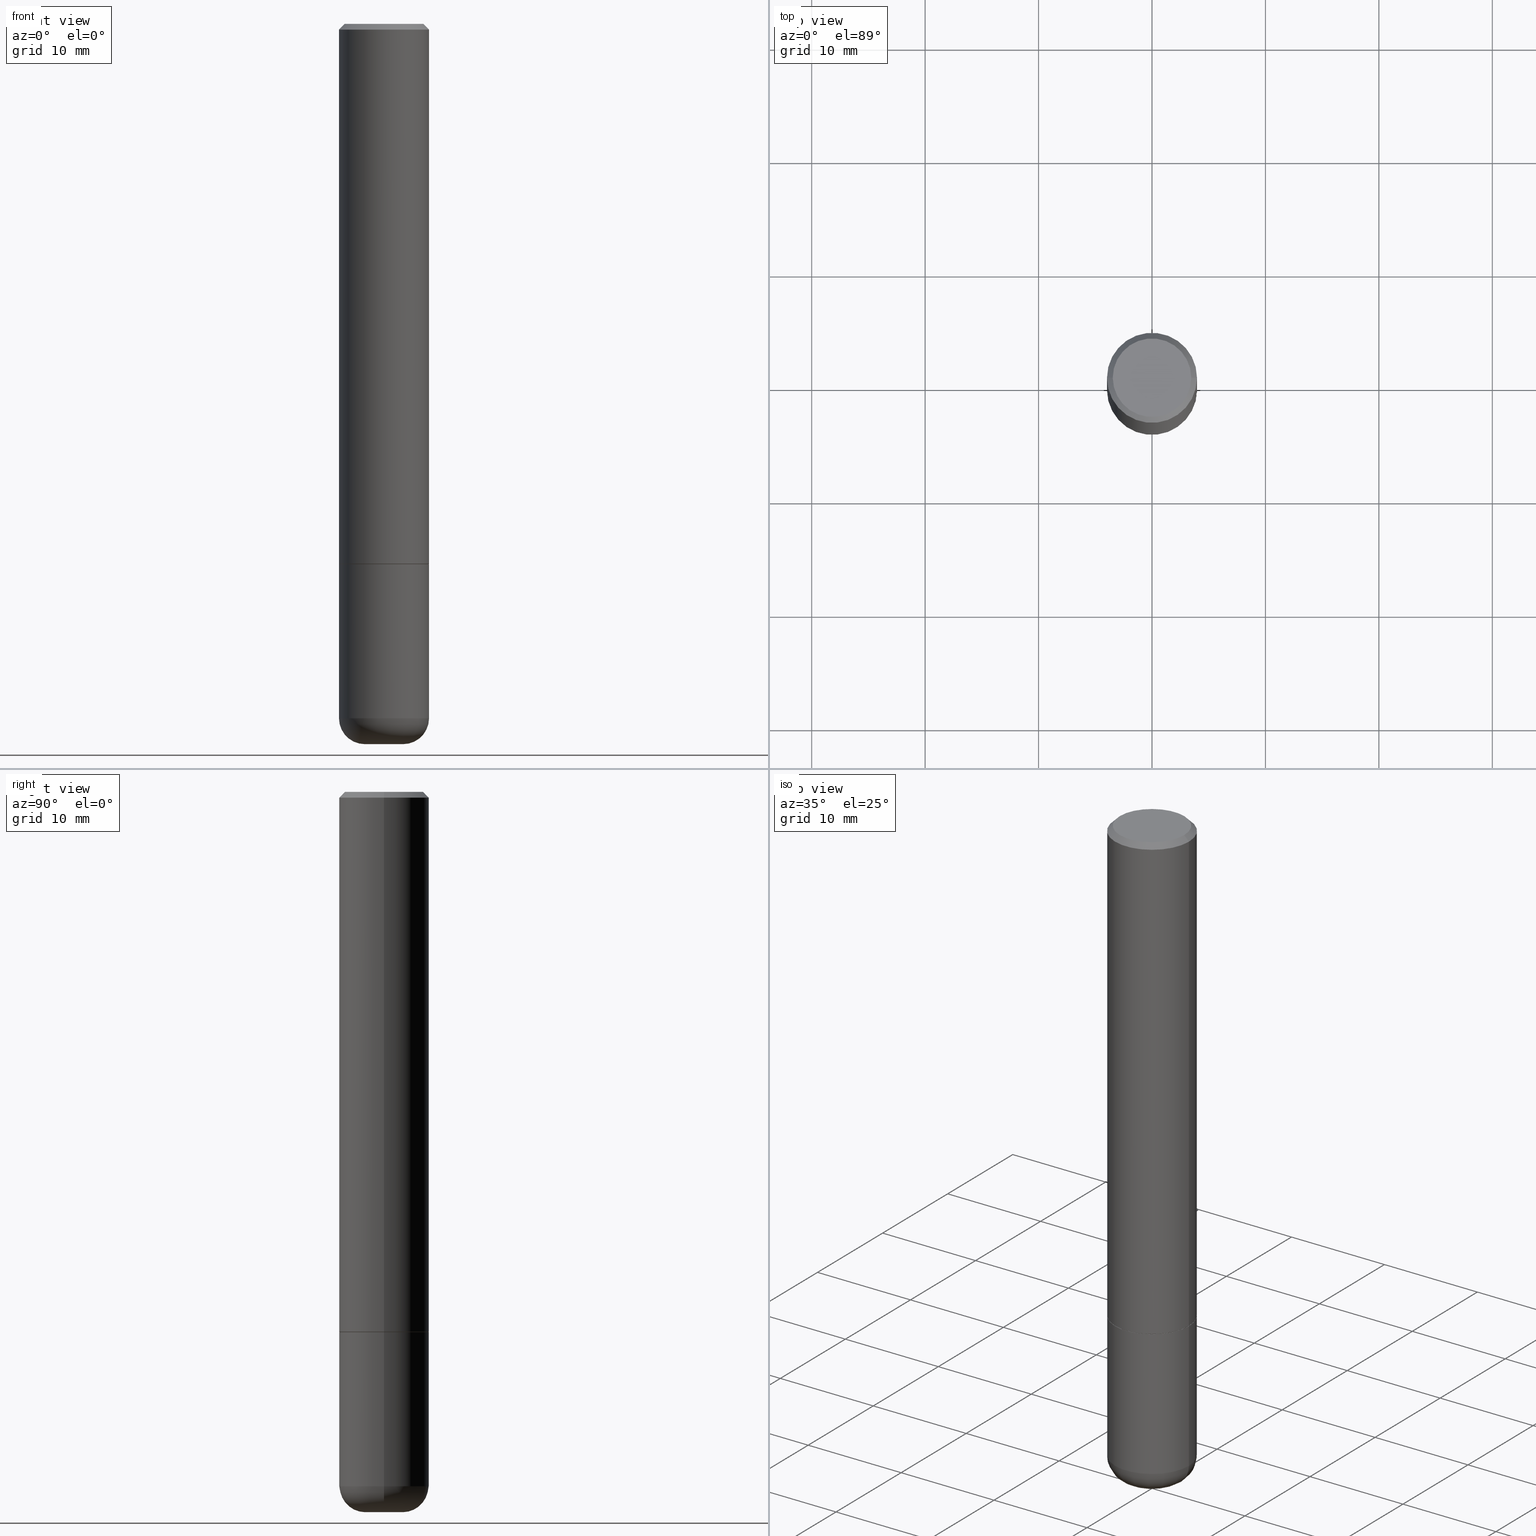
[diagram: canonical four-view strip — front | top / right | iso, engineering-drawing reading convention]
A machine part, canonical four-view strip (front | top / right | iso — engineering-drawing reading convention). The complete STEP part file that produces these views, byte-faithful:
ISO-10303-21;
HEADER;
FILE_DESCRIPTION (( 'STEP AP203' ),
    '1' );
FILE_NAME ('38812.STEP',
    '2024-03-03T14:18:11',
    ( '' ),
    ( '' ),
    'SwSTEP 2.0',
    'SolidWorks 2023',
    '' );
FILE_SCHEMA (( 'CONFIG_CONTROL_DESIGN' ));
ENDSEC;

DATA;
#1 = EDGE_CURVE ( 'NONE', #281, #288, #223, .T. ) ;
#2 = AXIS2_PLACEMENT_3D ( 'NONE', #53, #233, #115 ) ;
#3 = AXIS2_PLACEMENT_3D ( 'NONE', #350, #389, #213 ) ;
#4 = DESIGN_CONTEXT ( 'detailed design', #93, 'design' ) ;
#5 = ORIENTED_EDGE ( 'NONE', *, *, #59, .T. ) ;
#6 = CARTESIAN_POINT ( 'NONE',  ( -0.1562500000000000278, 1.021258291611616467E-15, -0.02000000000000003511 ) ) ;
#7 = CARTESIAN_POINT ( 'NONE',  ( 0.1562500000000000000, -7.637615428719378669E-15, -1.875000000000000000 ) ) ;
#8 = UNCERTAINTY_MEASURE_WITH_UNIT (LENGTH_MEASURE( 1.000000000000000082E-05 ), #252, 'distance_accuracy_value', 'NONE');
#9 = DIRECTION ( 'NONE',  ( -1.000000000000000000, 7.105427357601006592E-15, 0.000000000000000000 ) ) ;
#10 = CC_DESIGN_PERSON_AND_ORGANIZATION_ASSIGNMENT ( #110, #57, ( #107 ) ) ;
#11 = AXIS2_PLACEMENT_3D ( 'NONE', #305, #25, #283 ) ;
#12 = FACE_OUTER_BOUND ( 'NONE', #112, .T. ) ;
#13 = LINE ( 'NONE', #363, #79 ) ;
#14 = ORIENTED_EDGE ( 'NONE', *, *, #226, .T. ) ;
#15 = ADVANCED_FACE ( 'NONE', ( #105 ), #314, .T. ) ;
#16 = ORIENTED_EDGE ( 'NONE', *, *, #185, .F. ) ;
#17 = CARTESIAN_POINT ( 'NONE',  ( 4.582808542790945516E-29, -6.543036028992054911E-15, -1.874000000000000110 ) ) ;
#18 = DIRECTION ( 'NONE',  ( 0.7071067811865957564, -2.468850131082761932E-15, 0.7071067811864992780 ) ) ;
#19 = APPROVAL_STATUS ( 'not_yet_approved' ) ;
#20 = AXIS2_PLACEMENT_3D ( 'NONE', #362, #293, #156 ) ;
#21 = ORIENTED_EDGE ( 'NONE', *, *, #394, .F. ) ;
#22 = EDGE_LOOP ( 'NONE', ( #271, #16 ) ) ;
#23 = CALENDAR_DATE ( 2024, 3, 3 ) ;
#24 = ADVANCED_BREP_SHAPE_REPRESENTATION ( '38812', ( #383, #102, #3 ), #385 ) ;
#25 = DIRECTION ( 'NONE',  ( -6.982962677686266711E-15, -1.000000000000000000, 3.491481338843145583E-15 ) ) ;
#26 = APPROVAL_ROLE ( '' ) ;
#27 = ORIENTED_EDGE ( 'NONE', *, *, #66, .T. ) ;
#28 = CIRCLE ( 'NONE', #58, 0.1562500000000000278 ) ;
#29 = CARTESIAN_POINT ( 'NONE',  ( 4.585254011597131119E-29, -6.546527510330898707E-15, -1.875000000000000000 ) ) ;
#30 = CONICAL_SURFACE ( 'NONE', #142, 0.1562500000000000278, 0.7853981633974472798 ) ;
#31 = LENGTH_MEASURE_WITH_UNIT ( LENGTH_MEASURE( 0.02539999999999999897 ), #176 );
#32 = EDGE_CURVE ( 'NONE', #43, #165, #28, .T. ) ;
#33 = CARTESIAN_POINT ( 'NONE',  ( 4.890937612370281041E-31, -6.982962677686302702E-17, -0.02000000000000003511 ) ) ;
#34 = ADVANCED_FACE ( 'NONE', ( #174 ), #120, .T. ) ;
#35 = DIRECTION ( 'NONE',  ( 2.438088387897960049E-29, -3.491481338843145188E-15, -1.000000000000000000 ) ) ;
#36 = AXIS2_PLACEMENT_3D ( 'NONE', #304, #35, #218 ) ;
#37 = VECTOR ( 'NONE', #196, 39.37007874015748143 ) ;
#38 = CARTESIAN_POINT ( 'NONE',  ( -0.1562500000000000278, 1.021258291611616467E-15, -0.02000000000000003511 ) ) ;
#39 = CARTESIAN_POINT ( 'NONE',  ( 0.1362500000000000377, -1.038262645562518322E-15, 6.957025900226697878E-30 ) ) ;
#40 = EDGE_CURVE ( 'NONE', #281, #133, #166, .T. ) ;
#41 = LINE ( 'NONE', #416, #366 ) ;
#42 = EDGE_CURVE ( 'NONE', #409, #275, #299, .T. ) ;
#43 = VERTEX_POINT ( 'NONE', #355 ) ;
#44 = CIRCLE ( 'NONE', #132, 0.1562500000000002220 ) ;
#45 = DIRECTION ( 'NONE',  ( 1.000000000000000000, -6.982962677686268288E-15, 0.000000000000000000 ) ) ;
#46 = CC_DESIGN_APPROVAL ( #349, ( #414 ) ) ;
#47 = EDGE_CURVE ( 'NONE', #288, #281, #359, .T. ) ;
#48 = ORIENTED_EDGE ( 'NONE', *, *, #167, .F. ) ;
#49 = DIRECTION ( 'NONE',  ( 1.000000000000000000, -6.982962677686265922E-15, 0.000000000000000000 ) ) ;
#50 = AXIS2_PLACEMENT_3D ( 'NONE', #29, #244, #329 ) ;
#51 = PERSON_AND_ORGANIZATION ( #203, #71 ) ;
#52 = ORIENTED_EDGE ( 'NONE', *, *, #92, .F. ) ;
#53 = CARTESIAN_POINT ( 'NONE',  ( 4.890937612370281041E-31, -6.982962677686302702E-17, -0.02000000000000003511 ) ) ;
#54 = PLANE ( 'NONE',  #36 ) ;
#55 = CC_DESIGN_DATE_AND_TIME_ASSIGNMENT ( #272, #262, ( #107 ) ) ;
#56 = ORIENTED_EDGE ( 'NONE', *, *, #123, .F. ) ;
#57 = PERSON_AND_ORGANIZATION_ROLE ( 'classification_officer' ) ;
#58 = AXIS2_PLACEMENT_3D ( 'NONE', #368, #83, #171 ) ;
#59 = EDGE_CURVE ( 'NONE', #165, #43, #145, .T. ) ;
#60 = COORDINATED_UNIVERSAL_TIME_OFFSET ( 5, 0, .BEHIND. ) ;
#61 = EDGE_CURVE ( 'NONE', #170, #330, #346, .T. ) ;
#62 = COORDINATED_UNIVERSAL_TIME_OFFSET ( 5, 0, .BEHIND. ) ;
#63 = FACE_OUTER_BOUND ( 'NONE', #245, .T. ) ;
#64 = DIRECTION ( 'NONE',  ( -2.445468806185136597E-29, 3.491481338843145583E-15, 1.000000000000000000 ) ) ;
#65 = CC_DESIGN_APPROVAL ( #100, ( #220 ) ) ;
#66 = EDGE_CURVE ( 'NONE', #409, #170, #384, .T. ) ;
#67 = DIRECTION ( 'NONE',  ( 2.445468806185136597E-29, -3.491481338843145583E-15, -1.000000000000000000 ) ) ;
#68 = DIRECTION ( 'NONE',  ( -2.445468806185136597E-29, 3.491481338843145583E-15, 1.000000000000000000 ) ) ;
#69 = CARTESIAN_POINT ( 'NONE',  ( -0.1552499999999999991, -5.438111458715120773E-15, -1.875000000000000000 ) ) ;
#70 = AXIS2_PLACEMENT_3D ( 'NONE', #178, #253, #287 ) ;
#71 = ORGANIZATION ( 'UNSPECIFIED', 'UNSPECIFIED', '' ) ;
#72 = DIRECTION ( 'NONE',  ( -2.445468806185136597E-29, 3.491481338843145583E-15, 1.000000000000000000 ) ) ;
#73 = CC_DESIGN_PERSON_AND_ORGANIZATION_ASSIGNMENT ( #377, #164, ( #220 ) ) ;
#74 = ORIENTED_EDGE ( 'NONE', *, *, #300, .F. ) ;
#75 = DIRECTION ( 'NONE',  ( 1.000000000000000000, -6.982962677686262766E-15, 0.000000000000000000 ) ) ;
#76 = AXIS2_PLACEMENT_3D ( 'NONE', #400, #341, #114 ) ;
#77 = DIRECTION ( 'NONE',  ( -2.438088387897960049E-29, 3.491481338843145188E-15, 1.000000000000000000 ) ) ;
#78 = APPROVAL_DATE_TIME ( #309, #208 ) ;
#79 = VECTOR ( 'NONE', #327, 39.37007874015748143 ) ;
#80 = APPROVAL_PERSON_ORGANIZATION ( #303, #349, #26 ) ;
#81 = CARTESIAN_POINT ( 'NONE',  ( 6.113672015462842613E-29, -8.728703347107864943E-15, -2.500000000000000000 ) ) ;
#82 = ORIENTED_EDGE ( 'NONE', *, *, #185, .T. ) ;
#83 = DIRECTION ( 'NONE',  ( -2.445468806185136597E-29, 3.491481338843145583E-15, 1.000000000000000000 ) ) ;
#84 = SECURITY_CLASSIFICATION_LEVEL ( 'unclassified' ) ;
#85 = DIRECTION ( 'NONE',  ( -2.445468806185136597E-29, 3.491481338843145583E-15, 1.000000000000000000 ) ) ;
#86 = CARTESIAN_POINT ( 'NONE',  ( 0.1552499999999999991, -7.630632466041692655E-15, -1.875000000000000000 ) ) ;
#87 = SHAPE_DEFINITION_REPRESENTATION ( #315, #24 ) ;
#88 = CC_DESIGN_PERSON_AND_ORGANIZATION_ASSIGNMENT ( #90, #374, ( #414 ) ) ;
#89 = VERTEX_POINT ( 'NONE', #7 ) ;
#90 = PERSON_AND_ORGANIZATION ( #203, #71 ) ;
#91 = FACE_OUTER_BOUND ( 'NONE', #200, .T. ) ;
#92 = EDGE_CURVE ( 'NONE', #275, #89, #13, .T. ) ;
#93 = APPLICATION_CONTEXT ( 'configuration controlled 3d designs of mechanical parts and assemblies' ) ;
#94 = CLOSED_SHELL ( 'NONE', ( #162, #222, #378, #15, #194, #195, #294, #130 ) ) ;
#95 = CIRCLE ( 'NONE', #337, 0.1362500000000000377 ) ;
#96 = ORIENTED_EDGE ( 'NONE', *, *, #123, .T. ) ;
#97 = AXIS2_PLACEMENT_3D ( 'NONE', #183, #179, #113 ) ;
#98 = ORIENTED_EDGE ( 'NONE', *, *, #40, .F. ) ;
#99 = LINE ( 'NONE', #221, #154 ) ;
#100 = APPROVAL ( #19, 'UNSPECIFIED' ) ;
#101 = TOROIDAL_SURFACE ( 'NONE', #97, 0.06625000000000001721, 0.08999999999999992728 ) ;
#102 = MANIFOLD_SOLID_BREP ( 'Body-Move/Copy2[2]', #94 ) ;
#103 = ORIENTED_EDGE ( 'NONE', *, *, #1, .F. ) ;
#104 = DIRECTION ( 'NONE',  ( -2.445468806185136597E-29, 3.491481338843145583E-15, 1.000000000000000000 ) ) ;
#105 = FACE_OUTER_BOUND ( 'NONE', #204, .T. ) ;
#106 =( NAMED_UNIT ( * ) SI_UNIT ( $, .STERADIAN. ) SOLID_ANGLE_UNIT ( ) );
#107 = SECURITY_CLASSIFICATION ( '', '', #84 ) ;
#108 = PLANE ( 'NONE',  #198 ) ;
#109 = ORIENTED_EDGE ( 'NONE', *, *, #372, .F. ) ;
#110 = PERSON_AND_ORGANIZATION ( #203, #71 ) ;
#111 = ADVANCED_FACE ( 'NONE', ( #259 ), #311, .T. ) ;
#112 = EDGE_LOOP ( 'NONE', ( #119, #169, #153, #21 ) ) ;
#113 = DIRECTION ( 'NONE',  ( 1.000000000000000000, -6.982962677686265922E-15, 4.883557194083112340E-29 ) ) ;
#114 = DIRECTION ( 'NONE',  ( 1.000000000000000000, -6.982962677686268288E-15, 0.000000000000000000 ) ) ;
#115 = DIRECTION ( 'NONE',  ( -1.000000000000000000, 6.982962677686268288E-15, 0.000000000000000000 ) ) ;
#116 = APPROVAL_ROLE ( '' ) ;
#117 = AXIS2_PLACEMENT_3D ( 'NONE', #238, #380, #331 ) ;
#118 = APPROVAL_PERSON_ORGANIZATION ( #228, #208, #364 ) ;
#119 = ORIENTED_EDGE ( 'NONE', *, *, #167, .T. ) ;
#120 = CYLINDRICAL_SURFACE ( 'NONE', #117, 0.1562500000000000000 ) ;
#121 = CARTESIAN_POINT ( 'NONE',  ( 0.000000000000000000, 0.000000000000000000, 0.000000000000000000 ) ) ;
#122 = FACE_OUTER_BOUND ( 'NONE', #246, .T. ) ;
#123 = EDGE_CURVE ( 'NONE', #206, #133, #152, .T. ) ;
#124 = CONICAL_SURFACE ( 'NONE', #365, 0.1552499999999999991, 0.7853981633975165577 ) ;
#125 = CARTESIAN_POINT ( 'NONE',  ( 0.1562500000000002220, -7.634123947380535662E-15, -1.874000000000000110 ) ) ;
#126 = DIRECTION ( 'NONE',  ( 1.000000000000000000, -6.982962677686268288E-15, 0.000000000000000000 ) ) ;
#127 = FACE_OUTER_BOUND ( 'NONE', #173, .T. ) ;
#128 = AXIS2_PLACEMENT_3D ( 'NONE', #150, #72, #285 ) ;
#129 = CONICAL_SURFACE ( 'NONE', #392, 0.1552499999999999991, 0.7853981633975165577 ) ;
#130 = ADVANCED_FACE ( 'NONE', ( #212 ), #54, .F. ) ;
#131 = EDGE_CURVE ( 'NONE', #330, #275, #210, .T. ) ;
#132 = AXIS2_PLACEMENT_3D ( 'NONE', #17, #158, #49 ) ;
#133 = VERTEX_POINT ( 'NONE', #125 ) ;
#134 = COORDINATED_UNIVERSAL_TIME_OFFSET ( 5, 0, .BEHIND. ) ;
#135 = AXIS2_PLACEMENT_3D ( 'NONE', #388, #68, #75 ) ;
#136 = EDGE_CURVE ( 'NONE', #290, #343, #241, .T. ) ;
#137 = ORIENTED_EDGE ( 'NONE', *, *, #386, .F. ) ;
#138 = EDGE_LOOP ( 'NONE', ( #276, #190 ) ) ;
#139 = EDGE_LOOP ( 'NONE', ( #316, #82, #182, #209 ) ) ;
#140 = PERSON_AND_ORGANIZATION_ROLE ( 'creator' ) ;
#141 = ORIENTED_EDGE ( 'NONE', *, *, #370, .F. ) ;
#142 = AXIS2_PLACEMENT_3D ( 'NONE', #33, #67, #225 ) ;
#143 = ORIENTED_EDGE ( 'NONE', *, *, #131, .T. ) ;
#144 = ORIENTED_EDGE ( 'NONE', *, *, #148, .T. ) ;
#145 = CIRCLE ( 'NONE', #205, 0.1562500000000000278 ) ;
#146 = LOCAL_TIME ( 9, 18, 11.00000000000000000, #60 ) ;
#147 = DIRECTION ( 'NONE',  ( -1.000000000000000000, 6.982962677686265922E-15, -4.876176775795935793E-29 ) ) ;
#148 = EDGE_CURVE ( 'NONE', #288, #206, #318, .T. ) ;
#149 = CARTESIAN_POINT ( 'NONE',  ( 4.890937612370281041E-31, -6.982962677686302702E-17, -0.02000000000000003511 ) ) ;
#150 = CARTESIAN_POINT ( 'NONE',  ( 5.893579822906179826E-29, -8.414470026611981678E-15, -2.410000000000000142 ) ) ;
#151 = ORIENTED_EDGE ( 'NONE', *, *, #386, .T. ) ;
#152 = CIRCLE ( 'NONE', #401, 0.1562500000000002220 ) ;
#153 = ORIENTED_EDGE ( 'NONE', *, *, #32, .F. ) ;
#154 = VECTOR ( 'NONE', #257, 39.37007874015748143 ) ;
#155 = VECTOR ( 'NONE', #395, 39.37007874015748143 ) ;
#156 = DIRECTION ( 'NONE',  ( 1.000000000000000000, -6.982962677686268288E-15, 0.000000000000000000 ) ) ;
#157 = CARTESIAN_POINT ( 'NONE',  ( 4.585254011597131119E-29, -6.546527510330898707E-15, -1.875000000000000000 ) ) ;
#158 = DIRECTION ( 'NONE',  ( -2.445468806185136597E-29, 3.491481338843145583E-15, 1.000000000000000000 ) ) ;
#159 = DIRECTION ( 'NONE',  ( 1.000000000000000000, -6.982962677686265922E-15, 4.876176775795935793E-29 ) ) ;
#160 = LOCAL_TIME ( 9, 18, 11.00000000000000000, #62 ) ;
#161 = DIRECTION ( 'NONE',  ( -2.445468806185136597E-29, 3.491481338843145583E-15, 1.000000000000000000 ) ) ;
#162 = ADVANCED_FACE ( 'NONE', ( #122 ), #124, .T. ) ;
#163 = DIRECTION ( 'NONE',  ( -2.445468806185136597E-29, 3.491481338843145583E-15, 1.000000000000000000 ) ) ;
#164 = PERSON_AND_ORGANIZATION_ROLE ( 'creator' ) ;
#165 = VERTEX_POINT ( 'NONE', #6 ) ;
#166 = LINE ( 'NONE', #86, #231 ) ;
#167 = EDGE_CURVE ( 'NONE', #133, #206, #44, .T. ) ;
#168 = DIRECTION ( 'NONE',  ( 1.000000000000000000, -6.982962677686266711E-15, 4.876176775795936353E-29 ) ) ;
#169 = ORIENTED_EDGE ( 'NONE', *, *, #372, .T. ) ;
#170 = VERTEX_POINT ( 'NONE', #191 ) ;
#171 = DIRECTION ( 'NONE',  ( 1.000000000000000000, -6.982962677686266711E-15, 0.000000000000000000 ) ) ;
#172 = PERSON_AND_ORGANIZATION ( #203, #71 ) ;
#173 = EDGE_LOOP ( 'NONE', ( #14, #297, #270, #52 ) ) ;
#174 = FACE_OUTER_BOUND ( 'NONE', #230, .T. ) ;
#175 = COORDINATED_UNIVERSAL_TIME_OFFSET ( 5, 0, .BEHIND. ) ;
#176 =( LENGTH_UNIT ( ) NAMED_UNIT ( * ) SI_UNIT ( $, .METRE. ) );
#177 = ORIENTED_EDGE ( 'NONE', *, *, #92, .T. ) ;
#178 = CARTESIAN_POINT ( 'NONE',  ( 0.000000000000000000, 0.000000000000000000, 0.000000000000000000 ) ) ;
#179 = DIRECTION ( 'NONE',  ( -2.445468806185136597E-29, 3.491481338843145583E-15, 1.000000000000000000 ) ) ;
#180 = CC_DESIGN_PERSON_AND_ORGANIZATION_ASSIGNMENT ( #51, #140, ( #414 ) ) ;
#181 = AXIS2_PLACEMENT_3D ( 'NONE', #413, #104, #217 ) ;
#182 = ORIENTED_EDGE ( 'NONE', *, *, #42, .T. ) ;
#183 = CARTESIAN_POINT ( 'NONE',  ( 5.893579822906179826E-29, -8.414470026611981678E-15, -2.410000000000000142 ) ) ;
#184 = APPLICATION_PROTOCOL_DEFINITION ( 'international standard', 'config_control_design', 1994, #357 ) ;
#185 = EDGE_CURVE ( 'NONE', #170, #409, #250, .T. ) ;
#186 = CARTESIAN_POINT ( 'NONE',  ( 4.585254011597131119E-29, -6.546527510330898707E-15, -1.875000000000000000 ) ) ;
#187 = CARTESIAN_POINT ( 'NONE',  ( 0.000000000000000000, 0.000000000000000000, 0.000000000000000000 ) ) ;
#188 = DIRECTION ( 'NONE',  ( 1.000000000000000000, -6.982962677686266711E-15, 4.876176775795936353E-29 ) ) ;
#189 = LINE ( 'NONE', #321, #325 ) ;
#190 = ORIENTED_EDGE ( 'NONE', *, *, #136, .T. ) ;
#191 = CARTESIAN_POINT ( 'NONE',  ( -0.06625000000000001721, -7.781107893326811349E-15, -2.500000000000000000 ) ) ;
#192 = DIRECTION ( 'NONE',  ( 0.7071067811865467956, -7.319954787623254468E-15, -0.7071067811865482389 ) ) ;
#193 = DIRECTION ( 'NONE',  ( 1.000000000000000000, -6.982962677686266711E-15, 0.000000000000000000 ) ) ;
#194 = ADVANCED_FACE ( 'NONE', ( #63 ), #407, .T. ) ;
#195 = ADVANCED_FACE ( 'NONE', ( #216 ), #129, .T. ) ;
#196 = DIRECTION ( 'NONE',  ( -2.445468806185136877E-29, 3.491481338843145188E-15, 1.000000000000000000 ) ) ;
#197 = VECTOR ( 'NONE', #371, 39.37007874015748143 ) ;
#198 = AXIS2_PLACEMENT_3D ( 'NONE', #339, #251, #227 ) ;
#199 = CALENDAR_DATE ( 2024, 3, 3 ) ;
#200 = EDGE_LOOP ( 'NONE', ( #267, #322, #235, #137 ) ) ;
#201 = APPROVAL_DATE_TIME ( #239, #349 ) ;
#202 = EDGE_LOOP ( 'NONE', ( #27, #301, #240, #264 ) ) ;
#203 = PERSON ( 'UNSPECIFIED', 'UNSPECIFIED', 'UNSPECIFIED', ('UNSPECIFIED'), ('UNSPECIFIED'), ('UNSPECIFIED') ) ;
#204 = EDGE_LOOP ( 'NONE', ( #353, #141, #151, #5 ) ) ;
#205 = AXIS2_PLACEMENT_3D ( 'NONE', #149, #161, #193 ) ;
#206 = VERTEX_POINT ( 'NONE', #254 ) ;
#207 = APPROVAL_STATUS ( 'not_yet_approved' ) ;
#208 = APPROVAL ( #207, 'UNSPECIFIED' ) ;
#209 = ORIENTED_EDGE ( 'NONE', *, *, #131, .F. ) ;
#210 = CIRCLE ( 'NONE', #128, 0.1562500000000000000 ) ;
#211 = AXIS2_PLACEMENT_3D ( 'NONE', #157, #77, #159 ) ;
#212 = FACE_OUTER_BOUND ( 'NONE', #138, .T. ) ;
#213 = DIRECTION ( 'NONE',  ( 1.000000000000000000, 0.000000000000000000, 0.000000000000000000 ) ) ;
#214 = DIRECTION ( 'NONE',  ( 1.000000000000000000, -6.982962677686269077E-15, 0.000000000000000000 ) ) ;
#215 = EDGE_LOOP ( 'NONE', ( #367, #332, #308, #56 ) ) ;
#216 = FACE_OUTER_BOUND ( 'NONE', #215, .T. ) ;
#217 = DIRECTION ( 'NONE',  ( 1.000000000000000000, -6.982962677686268288E-15, 0.000000000000000000 ) ) ;
#218 = DIRECTION ( 'NONE',  ( -1.000000000000000000, 6.982962677686265922E-15, -4.876176775795935793E-29 ) ) ;
#219 = LOCAL_TIME ( 9, 18, 11.00000000000000000, #175 ) ;
#220 = PRODUCT_DEFINITION ( 'UNKNOWN', '', #414, #4 ) ;
#221 = CARTESIAN_POINT ( 'NONE',  ( 0.1562500000000001388, -1.091087918388480160E-15, 7.619026212181157383E-30 ) ) ;
#222 = ADVANCED_FACE ( 'NONE', ( #12 ), #248, .T. ) ;
#223 = CIRCLE ( 'NONE', #76, 0.1552499999999999991 ) ;
#224 = DIRECTION ( 'NONE',  ( -2.445468806185136597E-29, 3.491481338843145583E-15, 1.000000000000000000 ) ) ;
#225 = DIRECTION ( 'NONE',  ( -1.000000000000000000, 6.982962677686268288E-15, 0.000000000000000000 ) ) ;
#226 = EDGE_CURVE ( 'NONE', #275, #330, #375, .T. ) ;
#227 = DIRECTION ( 'NONE',  ( -1.000000000000000000, 6.982962677686265922E-15, -4.876176775795935793E-29 ) ) ;
#228 = PERSON_AND_ORGANIZATION ( #203, #71 ) ;
#229 = PLANE ( 'NONE',  #211 ) ;
#230 = EDGE_LOOP ( 'NONE', ( #74, #143, #177, #268 ) ) ;
#231 = VECTOR ( 'NONE', #18, 39.37007874015748143 ) ;
#232 = AXIS2_PLACEMENT_3D ( 'NONE', #286, #415, #214 ) ;
#233 = DIRECTION ( 'NONE',  ( 2.445468806185136597E-29, -3.491481338843145583E-15, -1.000000000000000000 ) ) ;
#234 = DIRECTION ( 'NONE',  ( -2.445468806185136877E-29, 3.491481338843145188E-15, 1.000000000000000000 ) ) ;
#235 = ORIENTED_EDGE ( 'NONE', *, *, #32, .T. ) ;
#236 = CALENDAR_DATE ( 2024, 3, 3 ) ;
#237 = CARTESIAN_POINT ( 'NONE',  ( -0.1562500000000000000, -6.370275743846283652E-15, -1.875000000000000000 ) ) ;
#238 = CARTESIAN_POINT ( 'NONE',  ( 0.000000000000000000, 0.000000000000000000, 0.000000000000000000 ) ) ;
#239 = DATE_AND_TIME ( #338, #289 ) ;
#240 = ORIENTED_EDGE ( 'NONE', *, *, #226, .F. ) ;
#241 = CIRCLE ( 'NONE', #408, 0.1362500000000000377 ) ;
#242 = DATE_AND_TIME ( #199, #160 ) ;
#243 = EDGE_CURVE ( 'NONE', #290, #43, #41, .T. ) ;
#244 = DIRECTION ( 'NONE',  ( -2.445468806185136597E-29, 3.491481338843145583E-15, 1.000000000000000000 ) ) ;
#245 = EDGE_LOOP ( 'NONE', ( #109, #96, #376, #326 ) ) ;
#246 = EDGE_LOOP ( 'NONE', ( #302, #144, #48, #98 ) ) ;
#247 = LINE ( 'NONE', #38, #155 ) ;
#248 = CYLINDRICAL_SURFACE ( 'NONE', #292, 0.1562500000000001388 ) ;
#249 = ADVANCED_FACE ( 'NONE', ( #127 ), #255, .T. ) ;
#250 = CIRCLE ( 'NONE', #412, 0.06625000000000001721 ) ;
#251 = DIRECTION ( 'NONE',  ( 2.438088387897960049E-29, -3.491481338843145188E-15, -1.000000000000000000 ) ) ;
#252 =( CONVERSION_BASED_UNIT ( 'INCH', #31 ) LENGTH_UNIT ( ) NAMED_UNIT ( #310 ) );
#253 = DIRECTION ( 'NONE',  ( -2.445468806185136597E-29, 3.491481338843145583E-15, 1.000000000000000000 ) ) ;
#254 = CARTESIAN_POINT ( 'NONE',  ( -0.1562500000000002220, -2.196209803259299803E-15, -1.874000000000000110 ) ) ;
#255 = CYLINDRICAL_SURFACE ( 'NONE', #277, 0.1562500000000000000 ) ;
#256 = DIRECTION ( 'NONE',  ( -2.445468806185136597E-29, 3.491481338843145583E-15, 1.000000000000000000 ) ) ;
#257 = DIRECTION ( 'NONE',  ( -2.445468806185136877E-29, 3.491481338843145188E-15, 1.000000000000000000 ) ) ;
#258 = APPROVAL_PERSON_ORGANIZATION ( #172, #100, #116 ) ;
#259 = FACE_OUTER_BOUND ( 'NONE', #139, .T. ) ;
#260 = EDGE_CURVE ( 'NONE', #333, #89, #284, .T. ) ;
#261 = DIRECTION ( 'NONE',  ( 7.105427357601001859E-15, 1.000000000000000000, -3.491481338843145583E-15 ) ) ;
#262 = DATE_TIME_ROLE ( 'classification_date' ) ;
#263 = ADVANCED_FACE ( 'NONE', ( #296 ), #282, .F. ) ;
#264 = ORIENTED_EDGE ( 'NONE', *, *, #42, .F. ) ;
#265 = APPROVAL_DATE_TIME ( #342, #100 ) ;
#266 = CARTESIAN_POINT ( 'NONE',  ( -0.1562500000000000000, 1.110223024625156540E-15, -7.685836078523291160E-30 ) ) ;
#267 = ORIENTED_EDGE ( 'NONE', *, *, #136, .F. ) ;
#268 = ORIENTED_EDGE ( 'NONE', *, *, #260, .F. ) ;
#269 = APPLICATION_PROTOCOL_DEFINITION ( 'international standard', 'config_control_design', 1994, #93 ) ;
#270 = ORIENTED_EDGE ( 'NONE', *, *, #280, .F. ) ;
#271 = ORIENTED_EDGE ( 'NONE', *, *, #66, .F. ) ;
#272 = DATE_AND_TIME ( #236, #348 ) ;
#273 = FACE_OUTER_BOUND ( 'NONE', #202, .T. ) ;
#274 = EDGE_LOOP ( 'NONE', ( #103, #373 ) ) ;
#275 = VERTEX_POINT ( 'NONE', #313 ) ;
#276 = ORIENTED_EDGE ( 'NONE', *, *, #370, .T. ) ;
#277 = AXIS2_PLACEMENT_3D ( 'NONE', #391, #163, #278 ) ;
#278 = DIRECTION ( 'NONE',  ( 1.000000000000000000, -6.982962677686266711E-15, 4.876176775795936353E-29 ) ) ;
#279 = DIRECTION ( 'NONE',  ( 1.000000000000000000, -6.982962677686265922E-15, 0.000000000000000000 ) ) ;
#280 = EDGE_CURVE ( 'NONE', #89, #333, #398, .T. ) ;
#281 = VERTEX_POINT ( 'NONE', #352 ) ;
#282 = PLANE ( 'NONE',  #360 ) ;
#283 = DIRECTION ( 'NONE',  ( 1.000000000000000000, -6.982962677686273810E-15, 0.000000000000000000 ) ) ;
#284 = CIRCLE ( 'NONE', #50, 0.1562500000000000000 ) ;
#285 = DIRECTION ( 'NONE',  ( 1.000000000000000000, -6.982962677686262766E-15, 0.000000000000000000 ) ) ;
#286 = CARTESIAN_POINT ( 'NONE',  ( 4.585254011597131119E-29, -6.546527510330898707E-15, -1.875000000000000000 ) ) ;
#287 = DIRECTION ( 'NONE',  ( 1.000000000000000000, -6.982962677686266711E-15, 4.876176775795936353E-29 ) ) ;
#288 = VERTEX_POINT ( 'NONE', #69 ) ;
#289 = LOCAL_TIME ( 9, 18, 11.00000000000000000, #406 ) ;
#290 = VERTEX_POINT ( 'NONE', #39 ) ;
#291 = PRODUCT_RELATED_PRODUCT_CATEGORY ( 'detail', '', ( #361 ) ) ;
#292 = AXIS2_PLACEMENT_3D ( 'NONE', #121, #340, #381 ) ;
#293 = DIRECTION ( 'NONE',  ( -2.445468806185136597E-29, 3.491481338843145583E-15, 1.000000000000000000 ) ) ;
#294 = ADVANCED_FACE ( 'NONE', ( #417 ), #229, .F. ) ;
#295 = FACE_OUTER_BOUND ( 'NONE', #22, .T. ) ;
#296 = FACE_OUTER_BOUND ( 'NONE', #358, .T. ) ;
#297 = ORIENTED_EDGE ( 'NONE', *, *, #300, .T. ) ;
#298 = PERSON_AND_ORGANIZATION_ROLE ( 'design_owner' ) ;
#299 = CIRCLE ( 'NONE', #11, 0.08999999999999992728 ) ;
#300 = EDGE_CURVE ( 'NONE', #330, #333, #324, .T. ) ;
#301 = ORIENTED_EDGE ( 'NONE', *, *, #61, .T. ) ;
#302 = ORIENTED_EDGE ( 'NONE', *, *, #1, .T. ) ;
#303 = PERSON_AND_ORGANIZATION ( #203, #71 ) ;
#304 = CARTESIAN_POINT ( 'NONE',  ( 9.514286648347541549E-16, 0.1362500000000000377, -4.757143324173787538E-16 ) ) ;
#305 = CARTESIAN_POINT ( 'NONE',  ( 0.06625000000000001721, -8.877091304008696690E-15, -2.410000000000000142 ) ) ;
#306 = DATE_TIME_ROLE ( 'creation_date' ) ;
#307 = DIRECTION ( 'NONE',  ( 1.000000000000000000, -6.982962677686265922E-15, 4.883557194083112340E-29 ) ) ;
#308 = ORIENTED_EDGE ( 'NONE', *, *, #40, .T. ) ;
#309 = DATE_AND_TIME ( #23, #219 ) ;
#310 = DIMENSIONAL_EXPONENTS ( 1.000000000000000000, 0.000000000000000000, 0.000000000000000000, 0.000000000000000000, 0.000000000000000000, 0.000000000000000000, 0.000000000000000000 ) ;
#311 = TOROIDAL_SURFACE ( 'NONE', #390, 0.06625000000000001721, 0.08999999999999992728 ) ;
#312 = ADVANCED_FACE ( 'NONE', ( #295 ), #108, .T. ) ;
#313 = CARTESIAN_POINT ( 'NONE',  ( 0.1562499999999999722, -9.505557945000458485E-15, -2.410000000000000142 ) ) ;
#314 = CONICAL_SURFACE ( 'NONE', #2, 0.1562500000000000278, 0.7853981633974472798 ) ;
#315 = PRODUCT_DEFINITION_SHAPE ( 'NONE', 'NONE',  #220 ) ;
#316 = ORIENTED_EDGE ( 'NONE', *, *, #61, .F. ) ;
#317 = PERSON_AND_ORGANIZATION ( #203, #71 ) ;
#318 = LINE ( 'NONE', #320, #197 ) ;
#319 = DIRECTION ( 'NONE',  ( -2.445468806185136597E-29, 3.491481338843145583E-15, 1.000000000000000000 ) ) ;
#320 = CARTESIAN_POINT ( 'NONE',  ( -0.1552499999999999991, -5.443409913063343964E-15, -1.875000000000000000 ) ) ;
#321 = CARTESIAN_POINT ( 'NONE',  ( -0.1562500000000001388, 1.110223024625157526E-15, -7.685836078523296765E-30 ) ) ;
#322 = ORIENTED_EDGE ( 'NONE', *, *, #243, .T. ) ;
#323 = CARTESIAN_POINT ( 'NONE',  ( -0.06625000000000001721, -7.943735464170915873E-15, -2.410000000000000142 ) ) ;
#324 = LINE ( 'NONE', #266, #37 ) ;
#325 = VECTOR ( 'NONE', #234, 39.37007874015748143 ) ;
#326 = ORIENTED_EDGE ( 'NONE', *, *, #59, .F. ) ;
#327 = DIRECTION ( 'NONE',  ( -2.445468806185136877E-29, 3.491481338843145188E-15, 1.000000000000000000 ) ) ;
#328 = CC_DESIGN_DATE_AND_TIME_ASSIGNMENT ( #242, #306, ( #220 ) ) ;
#329 = DIRECTION ( 'NONE',  ( 1.000000000000000000, -6.982962677686269077E-15, 0.000000000000000000 ) ) ;
#330 = VERTEX_POINT ( 'NONE', #410 ) ;
#331 = DIRECTION ( 'NONE',  ( 1.000000000000000000, -6.982962677686266711E-15, 4.876176775795936353E-29 ) ) ;
#332 = ORIENTED_EDGE ( 'NONE', *, *, #47, .T. ) ;
#333 = VERTEX_POINT ( 'NONE', #237 ) ;
#334 = CALENDAR_DATE ( 2024, 3, 3 ) ;
#335 = ADVANCED_FACE ( 'NONE', ( #273 ), #101, .T. ) ;
#336 = CARTESIAN_POINT ( 'NONE',  ( 0.06625000000000001721, -9.191324624504579954E-15, -2.500000000000000000 ) ) ;
#337 = AXIS2_PLACEMENT_3D ( 'NONE', #345, #64, #168 ) ;
#338 = CALENDAR_DATE ( 2024, 3, 3 ) ;
#339 = CARTESIAN_POINT ( 'NONE',  ( 6.113672015462842613E-29, -8.728703347107864943E-15, -2.500000000000000000 ) ) ;
#340 = DIRECTION ( 'NONE',  ( -2.445468806185136597E-29, 3.491481338843145583E-15, 1.000000000000000000 ) ) ;
#341 = DIRECTION ( 'NONE',  ( -2.445468806185136597E-29, 3.491481338843145583E-15, 1.000000000000000000 ) ) ;
#342 = DATE_AND_TIME ( #334, #146 ) ;
#343 = VERTEX_POINT ( 'NONE', #379 ) ;
#344 = DIRECTION ( 'NONE',  ( 1.000000000000000000, -6.982962677686268288E-15, 0.000000000000000000 ) ) ;
#345 = CARTESIAN_POINT ( 'NONE',  ( 0.000000000000000000, 0.000000000000000000, 0.000000000000000000 ) ) ;
#346 = CIRCLE ( 'NONE', #356, 0.08999999999999992728 ) ;
#347 = CC_DESIGN_APPROVAL ( #208, ( #107 ) ) ;
#348 = LOCAL_TIME ( 9, 18, 11.00000000000000000, #134 ) ;
#349 = APPROVAL ( #369, 'UNSPECIFIED' ) ;
#350 = CARTESIAN_POINT ( 'NONE',  ( 0.000000000000000000, 0.000000000000000000, 0.000000000000000000 ) ) ;
#351 = DIRECTION ( 'NONE',  ( 2.438088387897960049E-29, -3.491481338843145188E-15, -1.000000000000000000 ) ) ;
#352 = CARTESIAN_POINT ( 'NONE',  ( 0.1552499999999999991, -7.630632466041692655E-15, -1.875000000000000000 ) ) ;
#353 = ORIENTED_EDGE ( 'NONE', *, *, #243, .F. ) ;
#354 = CARTESIAN_POINT ( 'NONE',  ( 4.585254011597131119E-29, -6.546527510330898707E-15, -1.875000000000000000 ) ) ;
#355 = CARTESIAN_POINT ( 'NONE',  ( 0.1562500000000000278, -1.141782438928665105E-15, -0.02000000000000003511 ) ) ;
#356 = AXIS2_PLACEMENT_3D ( 'NONE', #323, #261, #9 ) ;
#357 = APPLICATION_CONTEXT ( 'configuration controlled 3d designs of mechanical parts and assemblies' ) ;
#358 = EDGE_LOOP ( 'NONE', ( #405, #393 ) ) ;
#359 = CIRCLE ( 'NONE', #181, 0.1552499999999999991 ) ;
#360 = AXIS2_PLACEMENT_3D ( 'NONE', #411, #351, #147 ) ;
#361 = PRODUCT ( '38812', '38812', '', ( #387 ) ) ;
#362 = CARTESIAN_POINT ( 'NONE',  ( 6.113672015462842613E-29, -8.728703347107864943E-15, -2.500000000000000000 ) ) ;
#363 = CARTESIAN_POINT ( 'NONE',  ( 0.1562500000000000000, -1.091087918388479174E-15, 7.619026212181150377E-30 ) ) ;
#364 = APPROVAL_ROLE ( '' ) ;
#365 = AXIS2_PLACEMENT_3D ( 'NONE', #186, #319, #45 ) ;
#366 = VECTOR ( 'NONE', #192, 39.37007874015748143 ) ;
#367 = ORIENTED_EDGE ( 'NONE', *, *, #148, .F. ) ;
#368 = CARTESIAN_POINT ( 'NONE',  ( 4.890937612370281041E-31, -6.982962677686302702E-17, -0.02000000000000003511 ) ) ;
#369 = APPROVAL_STATUS ( 'not_yet_approved' ) ;
#370 = EDGE_CURVE ( 'NONE', #343, #290, #95, .T. ) ;
#371 = DIRECTION ( 'NONE',  ( -0.7071067811865957564, 7.493145998870527710E-15, 0.7071067811864992780 ) ) ;
#372 = EDGE_CURVE ( 'NONE', #206, #165, #189, .T. ) ;
#373 = ORIENTED_EDGE ( 'NONE', *, *, #47, .F. ) ;
#374 = PERSON_AND_ORGANIZATION_ROLE ( 'design_supplier' ) ;
#375 = CIRCLE ( 'NONE', #135, 0.1562500000000000000 ) ;
#376 = ORIENTED_EDGE ( 'NONE', *, *, #394, .T. ) ;
#377 = PERSON_AND_ORGANIZATION ( #203, #71 ) ;
#378 = ADVANCED_FACE ( 'NONE', ( #91 ), #30, .T. ) ;
#379 = CARTESIAN_POINT ( 'NONE',  ( -0.1362500000000000377, 9.863434782231852123E-16, -6.775751096333141285E-30 ) ) ;
#380 = DIRECTION ( 'NONE',  ( -2.445468806185136597E-29, 3.491481338843145583E-15, 1.000000000000000000 ) ) ;
#381 = DIRECTION ( 'NONE',  ( 1.000000000000000000, -6.982962677686266711E-15, 4.876176775795936353E-29 ) ) ;
#382 =( NAMED_UNIT ( * ) PLANE_ANGLE_UNIT ( ) SI_UNIT ( $, .RADIAN. ) );
#383 = MANIFOLD_SOLID_BREP ( 'Body-Move/Copy2[1]', #397 ) ;
#384 = CIRCLE ( 'NONE', #20, 0.06625000000000001721 ) ;
#385 =( GEOMETRIC_REPRESENTATION_CONTEXT ( 3 ) GLOBAL_UNCERTAINTY_ASSIGNED_CONTEXT ( ( #8 ) ) GLOBAL_UNIT_ASSIGNED_CONTEXT ( ( #252, #382, #106 ) ) REPRESENTATION_CONTEXT ( 'NONE', 'WORKASPACE' ) );
#386 = EDGE_CURVE ( 'NONE', #343, #165, #247, .T. ) ;
#387 = MECHANICAL_CONTEXT ( 'NONE', #357, 'mechanical' ) ;
#388 = CARTESIAN_POINT ( 'NONE',  ( 5.893579822906179826E-29, -8.414470026611981678E-15, -2.410000000000000142 ) ) ;
#389 = DIRECTION ( 'NONE',  ( 0.000000000000000000, 0.000000000000000000, 1.000000000000000000 ) ) ;
#390 = AXIS2_PLACEMENT_3D ( 'NONE', #399, #224, #307 ) ;
#391 = CARTESIAN_POINT ( 'NONE',  ( 0.000000000000000000, 0.000000000000000000, 0.000000000000000000 ) ) ;
#392 = AXIS2_PLACEMENT_3D ( 'NONE', #354, #418, #126 ) ;
#393 = ORIENTED_EDGE ( 'NONE', *, *, #260, .T. ) ;
#394 = EDGE_CURVE ( 'NONE', #133, #43, #99, .T. ) ;
#395 = DIRECTION ( 'NONE',  ( -0.7071067811865467956, 2.468850131082249172E-15, -0.7071067811865482389 ) ) ;
#396 = CC_DESIGN_PERSON_AND_ORGANIZATION_ASSIGNMENT ( #317, #298, ( #361 ) ) ;
#397 = CLOSED_SHELL ( 'NONE', ( #249, #335, #263, #34, #111, #312 ) ) ;
#398 = CIRCLE ( 'NONE', #232, 0.1562500000000000000 ) ;
#399 = CARTESIAN_POINT ( 'NONE',  ( 5.893579822906179826E-29, -8.414470026611981678E-15, -2.410000000000000142 ) ) ;
#400 = CARTESIAN_POINT ( 'NONE',  ( 4.585254011597131119E-29, -6.546527510330898707E-15, -1.875000000000000000 ) ) ;
#401 = AXIS2_PLACEMENT_3D ( 'NONE', #402, #85, #279 ) ;
#402 = CARTESIAN_POINT ( 'NONE',  ( 4.582808542790945516E-29, -6.543036028992054911E-15, -1.874000000000000110 ) ) ;
#403 = CC_DESIGN_SECURITY_CLASSIFICATION ( #107, ( #414 ) ) ;
#404 = DIRECTION ( 'NONE',  ( -2.445468806185136597E-29, 3.491481338843145583E-15, 1.000000000000000000 ) ) ;
#405 = ORIENTED_EDGE ( 'NONE', *, *, #280, .T. ) ;
#406 = COORDINATED_UNIVERSAL_TIME_OFFSET ( 5, 0, .BEHIND. ) ;
#407 = CYLINDRICAL_SURFACE ( 'NONE', #70, 0.1562500000000001388 ) ;
#408 = AXIS2_PLACEMENT_3D ( 'NONE', #187, #256, #188 ) ;
#409 = VERTEX_POINT ( 'NONE', #336 ) ;
#410 = CARTESIAN_POINT ( 'NONE',  ( -0.1562499999999999722, -7.304247001986825138E-15, -2.410000000000000142 ) ) ;
#411 = CARTESIAN_POINT ( 'NONE',  ( 4.585254011597131119E-29, -6.546527510330898707E-15, -1.875000000000000000 ) ) ;
#412 = AXIS2_PLACEMENT_3D ( 'NONE', #81, #404, #344 ) ;
#413 = CARTESIAN_POINT ( 'NONE',  ( 4.585254011597131119E-29, -6.546527510330898707E-15, -1.875000000000000000 ) ) ;
#414 = PRODUCT_DEFINITION_FORMATION_WITH_SPECIFIED_SOURCE ( 'ANY', '', #361, .NOT_KNOWN. ) ;
#415 = DIRECTION ( 'NONE',  ( -2.445468806185136597E-29, 3.491481338843145583E-15, 1.000000000000000000 ) ) ;
#416 = CARTESIAN_POINT ( 'NONE',  ( 0.1562500000000000278, -1.141782438928665105E-15, -0.02000000000000003511 ) ) ;
#417 = FACE_OUTER_BOUND ( 'NONE', #274, .T. ) ;
#418 = DIRECTION ( 'NONE',  ( -2.445468806185136597E-29, 3.491481338843145583E-15, 1.000000000000000000 ) ) ;
ENDSEC;
END-ISO-10303-21;
